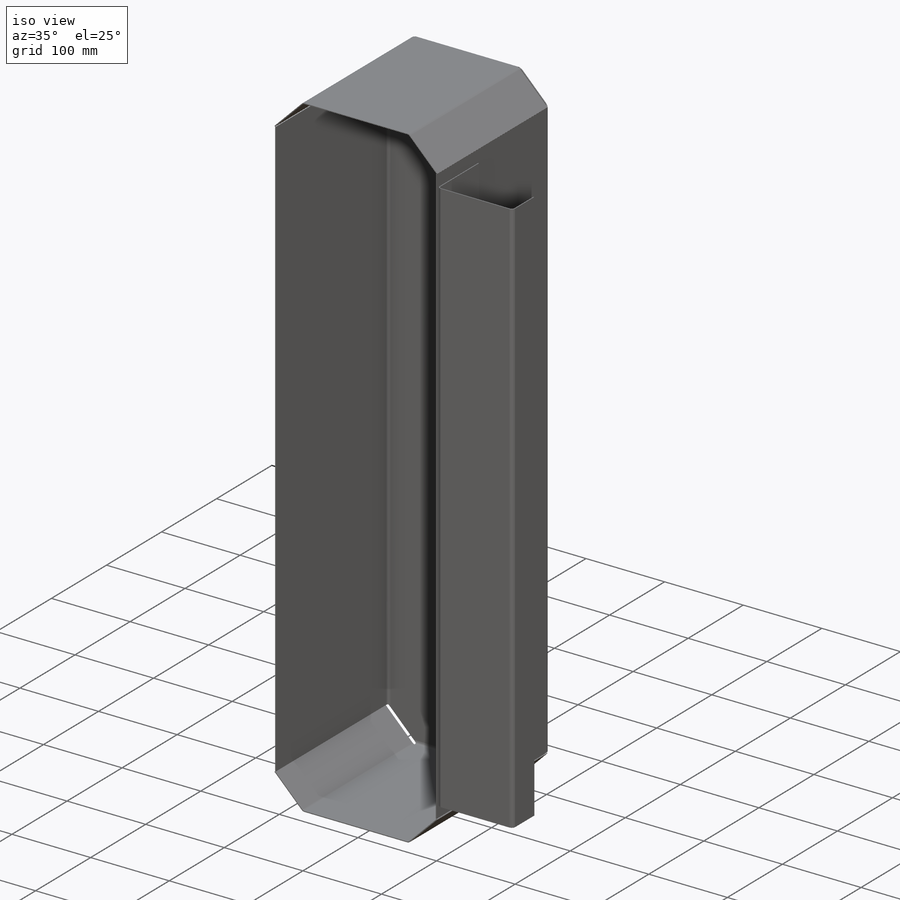
[diagram: iso view]
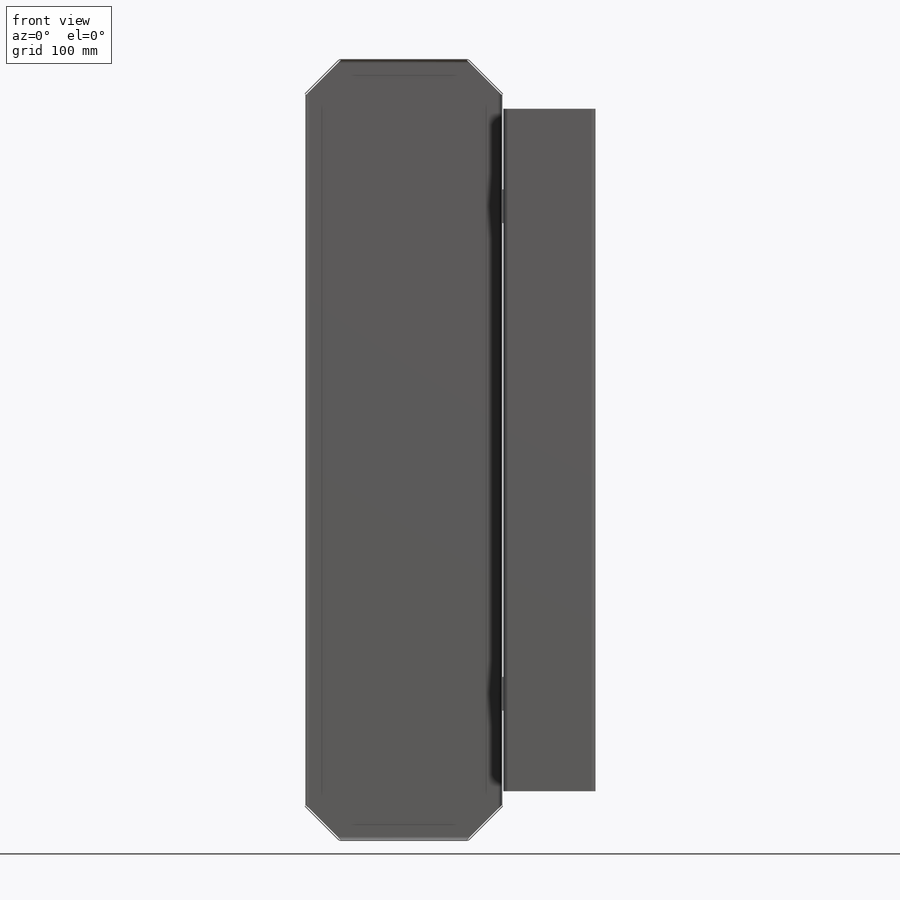
[diagram: front view]
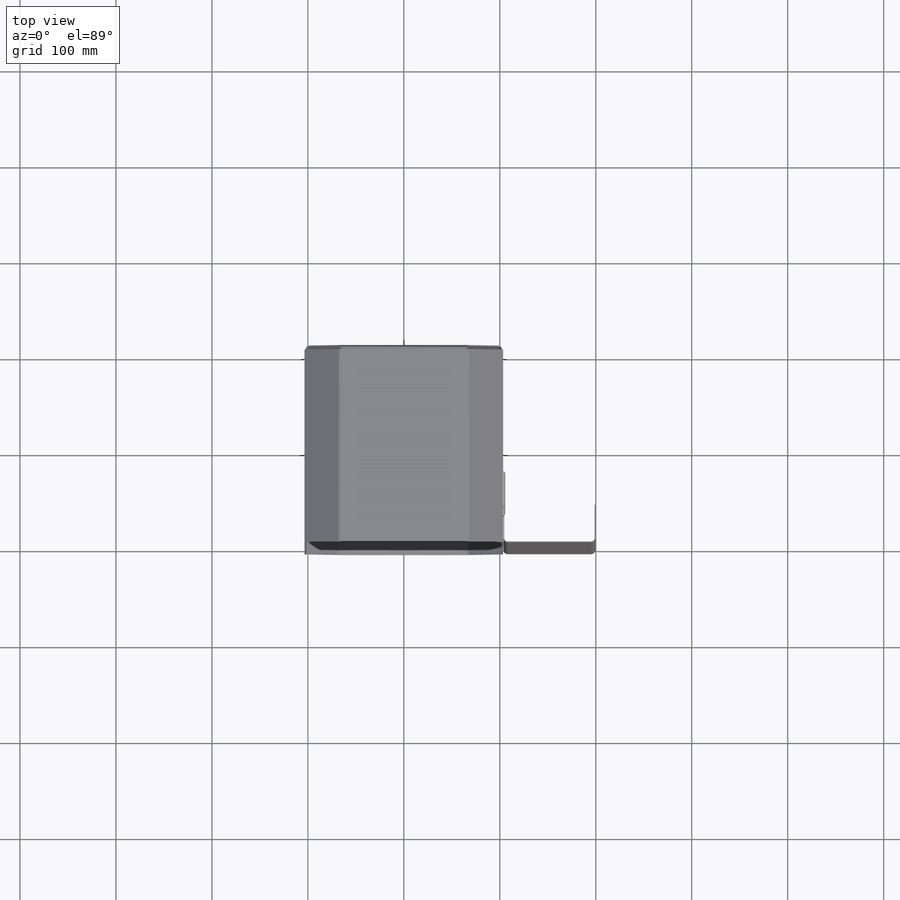
[diagram: top view]
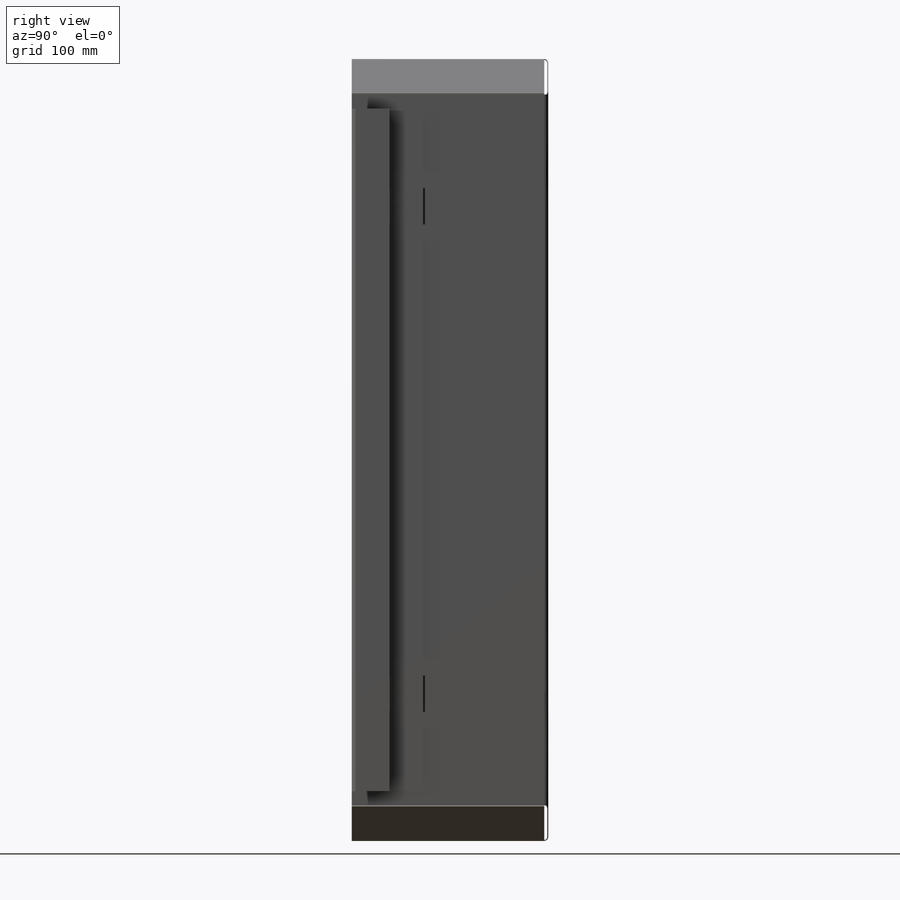
[diagram: right view]
SOLIDWORKS PART (.sldprt)
format: sldprt  version: not decoded by parser v0  size: 1,403,904 bytes
history: native  units: mm
features: sketch x36, sheet_metal_op x16, cut_extrude x4, mirror x3, material x1, extrude x1, plane x1 + 19 further entries (+13 scaffold rows collapsed; 1 parser-record rows omitted)
feature tree (95):
  scaffold x13  (default folders/planes/origin — collapsed)
  material  "Material <not specified>"
  sketch  "Sketch1"  dims[c1.D1=609.6mm c1.D2=1219.2mm c1.D3=203.2mm c1.D4=12.7mm c1.D5=184.15mm c1.D6=~30.428426mm c2.D6=~41.117101deg c3.D6=~785.398163mm c3.D7=50.8mm c3.D4=19.05mm]
  sketch  "Sketch2"  dims[D1=3.175mm D2=0.5 D3=0.0deg D6=~57.29578deg]
  sheet_metal_op  "Base-Flange1"
  sketch  "Sketch9"
  extrude  "Boss-Extrude1"  [1 undecoded]
  sketch  "Sketch10"
  parser-record x1  (decoder bookkeeping rows leaked as tree rows — omitted from the tree; the rows remain in map.json)
  "SketchBend2"
  "SketchBend3"
  "SketchBend4"
  sketch  "Sketch15"
  sheet_metal_op  "EdgeBend1"
  mirror  "Mirror1"
  "MirrorBend1"
  mirror  "Mirror2"
  "MirrorBend2"
  "MirrorBend3"
  sketch  "Sketch17"  dims[D1=38.1mm D2=38.1mm D3=38.1mm D4=254.0mm]
  cut_extrude  "Cut-Extrude1"  [1 undecoded]
  sketch  "Sketch20"  dims[D1=1.524mm D2=1.524mm]
  sheet_metal_op  "EdgeBend2"
  plane  "Plane1"
  sketch  "Sketch23"  dims[D1=3.175mm]
  sheet_metal_op  "EdgeBend3"
  mirror  "Mirror3"
  "MirrorBend4"
  "MirrorBend5"
  sketch  "Sketch24"  dims[D1=3.175mm D2=93.98mm D3=38.1mm D4=~5.531972mm]
  sheet_metal_op  "Base-Flange3"
  sketch  "Sketch29"  dims[D1=0.508mm D2=19.05mm]
  cut_extrude  "Cut-Extrude2"  [1 undecoded]
  sketch  "Bend-Lines1"
  sketch  "Bounding-Box1"
  sketch  "Sketch31"  dims[D1=1.524mm D2=12.7mm D3=12.7mm D4=27.0]
  cut_extrude  "Cut-Extrude4"  [1 undecoded]
  sketch  "Sketch30"  dims[D1=1.524mm D2=12.7mm D3=12.7mm D6=12.7mm D4=29.0 D5=5.0 D7=7.0]
  cut_extrude  "Cut-Extrude3"  [1 undecoded]
  sheet_metal_op  "Sheet-Metal1"
  "Flat-Pattern1"
  sketch  "Bend-Lines2"
  sketch  "Bounding-Box2"
  sheet_metal_op  "Sheet-Metal2"
  "Flat-Pattern1"
  sketch  "Bend-Lines2"
  sketch  "Bounding-Box2"
  sheet_metal_op  "Sheet-Metal3"
  "Flat-Pattern1"
  sketch  "Bend-Lines2"
  sketch  "Bounding-Box2"
  sheet_metal_op  "Sheet-Metal4"
  "Flat-Pattern1"
  sketch  "Bend-Lines2"
  sketch  "Bounding-Box2"
  sheet_metal_op  "Sheet-Metal5"
  "Flat-Pattern1"
  sketch  "Bend-Lines2"
  sketch  "Bounding-Box2"
  sheet_metal_op  "Sheet-Metal6"
  "Flat-Pattern1"
  sketch  "Bend-Lines2"
  sketch  "Bounding-Box2"
  sheet_metal_op  "Sheet-Metal7"
  "Flat-Pattern1"
  sketch  "Bend-Lines2"
  sketch  "Bounding-Box2"
  sheet_metal_op  "Sheet-Metal8"
  "Flat-Pattern1"
  sketch  "Bend-Lines2"
  sketch  "Bounding-Box2"
  sheet_metal_op  "Sheet-Metal9"
  "Flat-Pattern1"
  sketch  "Bend-Lines2"
  sketch  "Bounding-Box2"
  sheet_metal_op  "Sheet-Metal11"
  "Flat-Pattern11"
  sketch  "Bend-Lines4"
  sketch  "Bounding-Box4"
  sheet_metal_op  "Sheet-Metal12"
  "Flat-Pattern11"
  sketch  "Bend-Lines4"
  sketch  "Bounding-Box4"
decode coverage: 9 of 60 modeling features carry decoded parameters; 19 rows unclassified (native names shown)
note: ~ marks probable driven/reference dimensions
note: 5 parameter values undecoded
summary: no parameter record found for 5 features
note: suppression state not decoded; provenance and decode notes live in map.json
